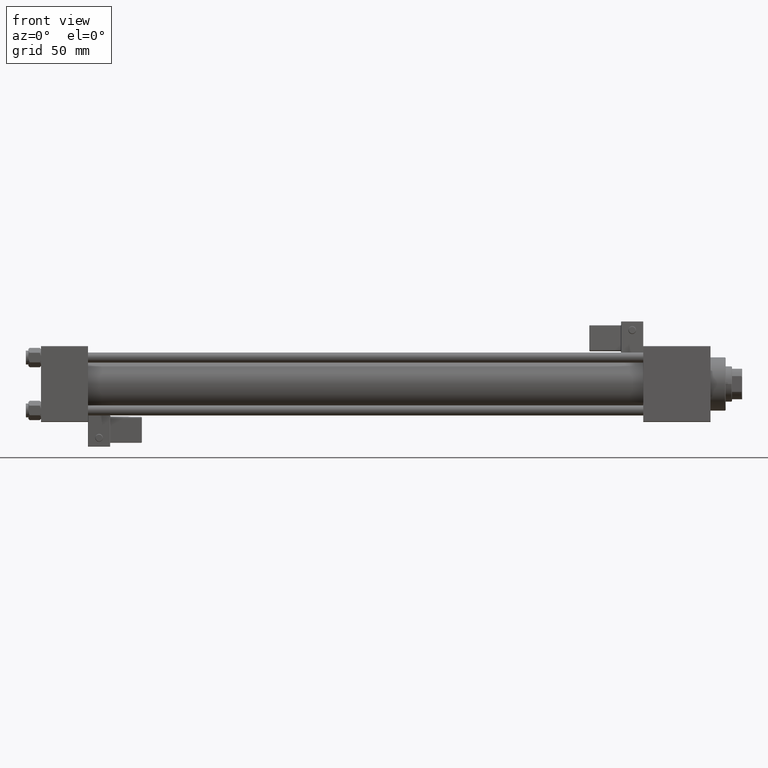
[diagram: clean part render]
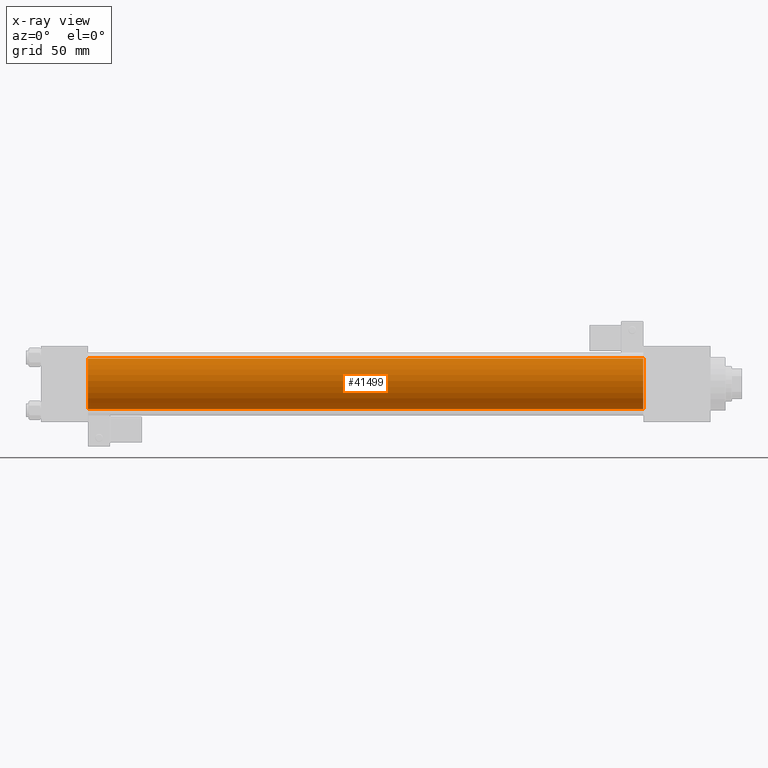
[diagram: x-ray — body ghosted, one internal face saturated and labeled with its STEP entity id]
A machine part, front view, then the same camera in x-ray: the body is ghosted and one INTERNAL B-rep face — a face not visible from any outside direction — is saturated and labeled: STEP entity #41499.
In plain terms, the highlighted cylindrical surface (edge-blend (fillet) strip) has radius 20 mm, axis along (-1, -0, -0).
Its self-contained STEP definition (entity closure, byte-faithful):
#2818 = CARTESIAN_POINT ( 'NONE',  ( 475.0000000000000000, -2.602085213965210642E-15, 0.000000000000000000 ) ) ;
#3368 = EDGE_CURVE ( 'NONE', #28571, #42268, #23165, .T. ) ;
#3871 = CYLINDRICAL_SURFACE ( 'NONE', #4036, 20.00000000000000000 ) ;
#4036 = AXIS2_PLACEMENT_3D ( 'NONE', #42035, #20395, #4924 ) ;
#4924 = DIRECTION ( 'NONE',  ( 0.000000000000000000, 0.000000000000000000, 1.000000000000000000 ) ) ;
#5929 = LINE ( 'NONE', #14059, #35235 ) ;
#7208 = VERTEX_POINT ( 'NONE', #48670 ) ;
#7590 = DIRECTION ( 'NONE',  ( 1.000000000000000000, 0.000000000000000000, 0.000000000000000000 ) ) ;
#7811 = LINE ( 'NONE', #19466, #49236 ) ;
#8487 = ORIENTED_EDGE ( 'NONE', *, *, #21148, .T. ) ;
#9472 = DIRECTION ( 'NONE',  ( -1.000000000000000000, -0.000000000000000000, -0.000000000000000000 ) ) ;
#10142 = ORIENTED_EDGE ( 'NONE', *, *, #46595, .F. ) ;
#11381 = CARTESIAN_POINT ( 'NONE',  ( 37.00000000000000000, -2.602085213965210642E-15, 0.000000000000000000 ) ) ;
#12975 = CARTESIAN_POINT ( 'NONE',  ( 475.0000000000000000, -1.527916156705042519E-16, -20.00000000000000000 ) ) ;
#14059 = CARTESIAN_POINT ( 'NONE',  ( 475.0000000000000000, -2.602085213965210642E-15, 20.00000000000000000 ) ) ;
#17924 = EDGE_CURVE ( 'NONE', #7208, #20663, #40067, .T. ) ;
#19345 = DIRECTION ( 'NONE',  ( 0.000000000000000000, 0.000000000000000000, -1.000000000000000000 ) ) ;
#19466 = CARTESIAN_POINT ( 'NONE',  ( 475.0000000000000000, -1.527916156705042519E-16, -20.00000000000000000 ) ) ;
#20395 = DIRECTION ( 'NONE',  ( -1.000000000000000000, -0.000000000000000000, -0.000000000000000000 ) ) ;
#20663 = VERTEX_POINT ( 'NONE', #29858 ) ;
#21148 = EDGE_CURVE ( 'NONE', #42268, #20663, #7811, .T. ) ;
#21560 = DIRECTION ( 'NONE',  ( 0.000000000000000000, 0.000000000000000000, -1.000000000000000000 ) ) ;
#23165 = CIRCLE ( 'NONE', #53446, 20.00000000000000000 ) ;
#28531 = CARTESIAN_POINT ( 'NONE',  ( 475.0000000000000000, -2.602085213965210642E-15, 20.00000000000000000 ) ) ;
#28571 = VERTEX_POINT ( 'NONE', #28531 ) ;
#28801 = FACE_OUTER_BOUND ( 'NONE', #44612, .T. ) ;
#29858 = CARTESIAN_POINT ( 'NONE',  ( 37.00000000000000000, -1.527916156705042519E-16, -20.00000000000000000 ) ) ;
#35235 = VECTOR ( 'NONE', #9472, 1000.000000000000000 ) ;
#35779 = ORIENTED_EDGE ( 'NONE', *, *, #17924, .F. ) ;
#40067 = CIRCLE ( 'NONE', #45220, 20.00000000000000000 ) ;
#41499 = ADVANCED_FACE ( 'NONE', ( #28801 ), #3871, .F. ) ;
#42035 = CARTESIAN_POINT ( 'NONE',  ( 475.0000000000000000, -2.602085213965210642E-15, 0.000000000000000000 ) ) ;
#42268 = VERTEX_POINT ( 'NONE', #12975 ) ;
#44246 = DIRECTION ( 'NONE',  ( 1.000000000000000000, 0.000000000000000000, 0.000000000000000000 ) ) ;
#44612 = EDGE_LOOP ( 'NONE', ( #48747, #8487, #35779, #10142 ) ) ;
#44903 = DIRECTION ( 'NONE',  ( -1.000000000000000000, -0.000000000000000000, -0.000000000000000000 ) ) ;
#45220 = AXIS2_PLACEMENT_3D ( 'NONE', #11381, #7590, #21560 ) ;
#46595 = EDGE_CURVE ( 'NONE', #28571, #7208, #5929, .T. ) ;
#48670 = CARTESIAN_POINT ( 'NONE',  ( 37.00000000000000000, -2.602085213965210642E-15, 20.00000000000000000 ) ) ;
#48747 = ORIENTED_EDGE ( 'NONE', *, *, #3368, .T. ) ;
#49236 = VECTOR ( 'NONE', #44903, 1000.000000000000000 ) ;
#53446 = AXIS2_PLACEMENT_3D ( 'NONE', #2818, #44246, #19345 ) ;